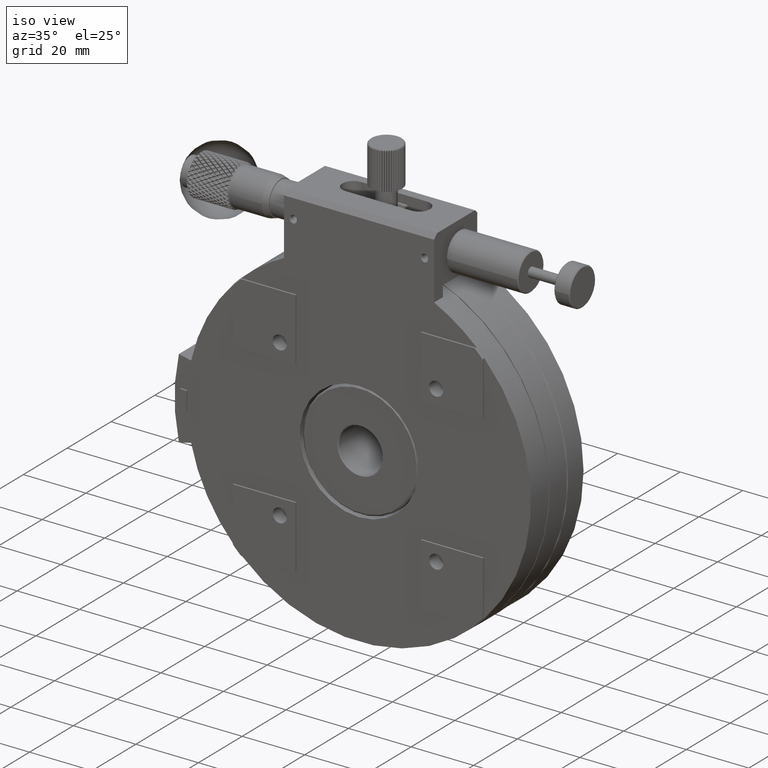
[diagram: clean part render]
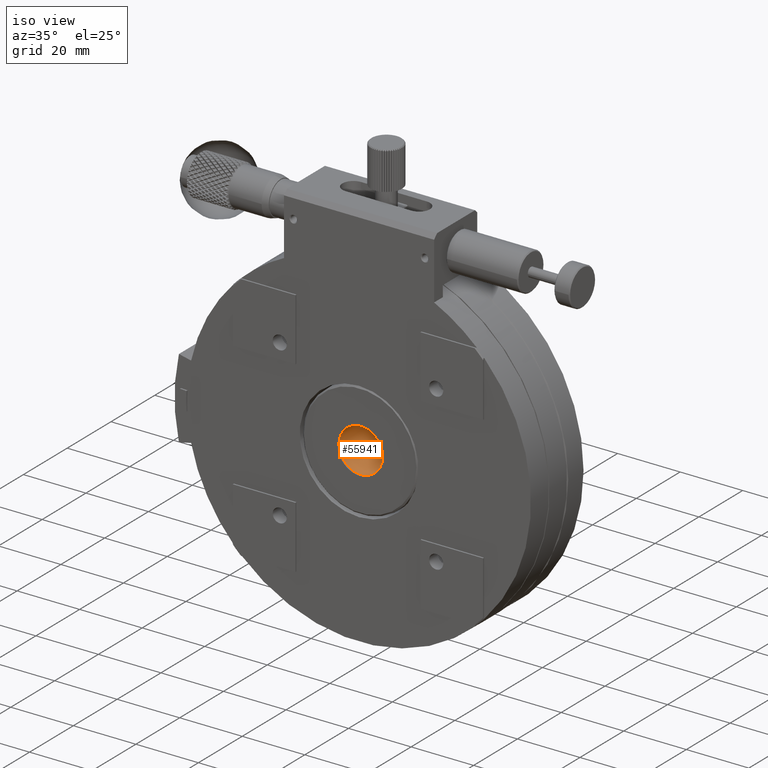
[diagram: same view with one face highlighted and labeled with its STEP entity id]
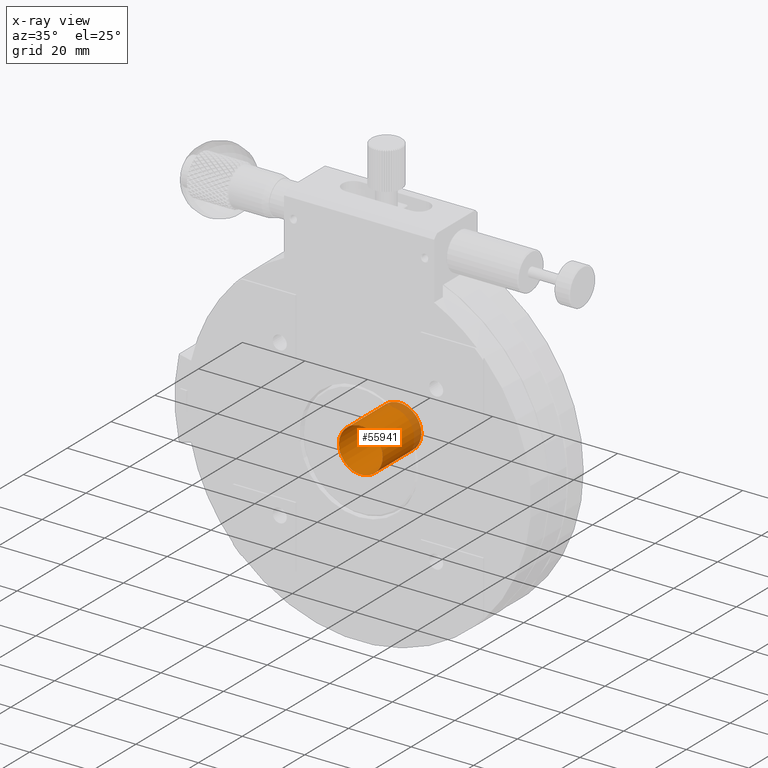
[diagram: x-ray of the same camera — body ghosted, the highlighted face saturated]
A machine part, iso view. The second image highlights one B-rep face of the part: STEP entity #55941.
The next image is the same camera in x-ray: the body ghosted, the highlighted face saturated — about 11% of this face is hidden behind the body in this view.
In plain terms, the highlighted cylindrical surface (bore or boss wall) has radius 7 mm, axis along (0, -1, 0).
Its self-contained STEP definition (entity closure, byte-faithful):
#826 = CYLINDRICAL_SURFACE ( 'NONE', #35509, 6.999999999999999112 ) ;
#4726 = CIRCLE ( 'NONE', #76754, 6.999999999999999112 ) ;
#15447 = CARTESIAN_POINT ( 'NONE',  ( 55.00000000000000000, 1.300000000000002043, -55.00000000000000000 ) ) ;
#16291 = CARTESIAN_POINT ( 'NONE',  ( 62.00000000000000000, 19.00000000000000355, -55.00000000000000000 ) ) ;
#17836 = ORIENTED_EDGE ( 'NONE', *, *, #40779, .F. ) ;
#19589 = CARTESIAN_POINT ( 'NONE',  ( 62.00000000000000000, 1.300000000000002043, -55.00000000000000000 ) ) ;
#20596 = DIRECTION ( 'NONE',  ( 0.000000000000000000, -1.000000000000000000, 0.000000000000000000 ) ) ;
#20603 = FACE_OUTER_BOUND ( 'NONE', #21556, .T. ) ;
#21556 = EDGE_LOOP ( 'NONE', ( #17836 ) ) ;
#27216 = EDGE_CURVE ( 'NONE', #82623, #82623, #90337, .T. ) ;
#35509 = AXIS2_PLACEMENT_3D ( 'NONE', #64294, #41758, #78514 ) ;
#39451 = EDGE_LOOP ( 'NONE', ( #49107 ) ) ;
#40779 = EDGE_CURVE ( 'NONE', #79314, #79314, #4726, .T. ) ;
#41758 = DIRECTION ( 'NONE',  ( 0.000000000000000000, -1.000000000000000000, 0.000000000000000000 ) ) ;
#43125 = FACE_OUTER_BOUND ( 'NONE', #39451, .T. ) ;
#49107 = ORIENTED_EDGE ( 'NONE', *, *, #27216, .F. ) ;
#55941 = ADVANCED_FACE ( 'NONE', ( #20603, #43125 ), #826, .F. ) ;
#63930 = AXIS2_PLACEMENT_3D ( 'NONE', #15447, #77996, #70682 ) ;
#64294 = CARTESIAN_POINT ( 'NONE',  ( 55.00000000000000000, 1.000000000000000000, -55.00000000000000000 ) ) ;
#69835 = CARTESIAN_POINT ( 'NONE',  ( 55.00000000000000000, 19.00000000000000355, -55.00000000000000000 ) ) ;
#70682 = DIRECTION ( 'NONE',  ( 1.000000000000000000, 0.000000000000000000, 0.000000000000000000 ) ) ;
#76754 = AXIS2_PLACEMENT_3D ( 'NONE', #69835, #20596, #83637 ) ;
#77996 = DIRECTION ( 'NONE',  ( -0.000000000000000000, 1.000000000000000000, -0.000000000000000000 ) ) ;
#78514 = DIRECTION ( 'NONE',  ( 1.000000000000000000, 0.000000000000000000, 0.000000000000000000 ) ) ;
#79314 = VERTEX_POINT ( 'NONE', #16291 ) ;
#82623 = VERTEX_POINT ( 'NONE', #19589 ) ;
#83637 = DIRECTION ( 'NONE',  ( 1.000000000000000000, 0.000000000000000000, 0.000000000000000000 ) ) ;
#90337 = CIRCLE ( 'NONE', #63930, 6.999999999999999112 ) ;